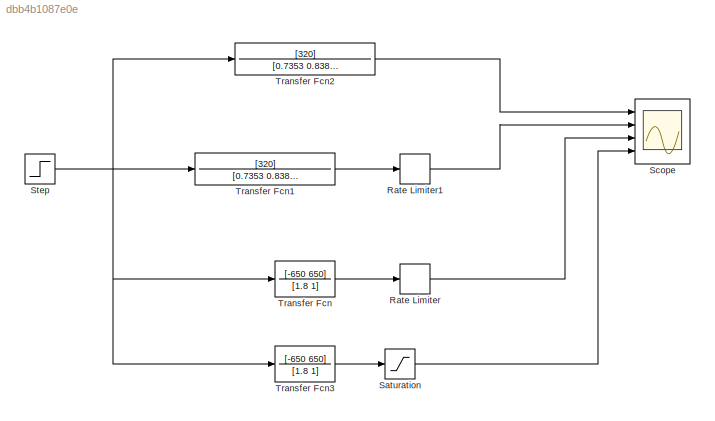
MODEL slx_dbb4b1087e0e
KIND model
CONFIG AbsTol = auto
CONFIG EnableMultiTasking = off
CONFIG FixedStep = auto
CONFIG MaxStep = auto
CONFIG MinStep = auto
CONFIG RelTol = 1e-3
CONFIG SampleTimeConstraint = Unconstrained
CONFIG Solver = VariableStepAuto
CONFIG SolverName = VariableStepAuto
CONFIG StartTime = 0.0
CONFIG StopTime = 15
BLOCK [RateLimiter] Rate Limiter
  FallingSlewLimit = 0
  RisingSlewLimit = 190
  SampleTimeMode = inherited
BLOCK [RateLimiter] Rate Limiter1
  FallingSlewLimit = 0
  RisingSlewLimit = 190
  SampleTimeMode = inherited
BLOCK [Saturate] Saturation
  InputPortMap = u0
  LowerLimit = 0
  Ports = [1, 1]
  UpperLimit = 190
BLOCK [Scope] Scope
  Floating = off
  NumInputPorts = 4
  Ports = [4]
  ScopeSpecificationString = Simulink.scopes.TimeScopeBlockCfg('CurrentConfiguration', extmgr.ConfigurationSet(extmgr.Configuration('Core','General UI',true),extmgr.Configuration('Core','Source UI',true),extmgr.Configuration('Sources','WiredSimulink',true,'DataLoggingVariableName','ScopeData1'),extmgr.Configuration('Visuals','Time Domain',true,'SerializedDisplays',{struct('MinYLimReal','-81.19769','MaxYLimReal','730.77924','Y...<+1453ch>
BLOCK [Step] Step
  SampleTime = 0
BLOCK [TransferFcn] Transfer Fcn
  Denominator = [1.8 1]
  Numerator = [-650 650]
BLOCK [TransferFcn] Transfer Fcn1
  Denominator = [0.7353 0.8386 1]
  Numerator = [320]
BLOCK [TransferFcn] Transfer Fcn2
  Denominator = [0.7353 0.8386 1]
  Numerator = [320]
BLOCK [TransferFcn] Transfer Fcn3
  Denominator = [1.8 1]
  Numerator = [-650 650]
LINE Rate Limiter1:1 -> Scope:2
LINE Rate Limiter:1 -> Scope:3
LINE Saturation:1 -> Scope:4
NET Step:1 -> Transfer Fcn1:1, Transfer Fcn2:1, Transfer Fcn3:1, Transfer Fcn:1
LINE Transfer Fcn1:1 -> Rate Limiter1:1
LINE Transfer Fcn2:1 -> Scope:1
LINE Transfer Fcn3:1 -> Saturation:1
LINE Transfer Fcn:1 -> Rate Limiter:1
note: NET lines group one-source signal fan-out (src -> all destinations, sorted); 1:1 wires keep LINE
